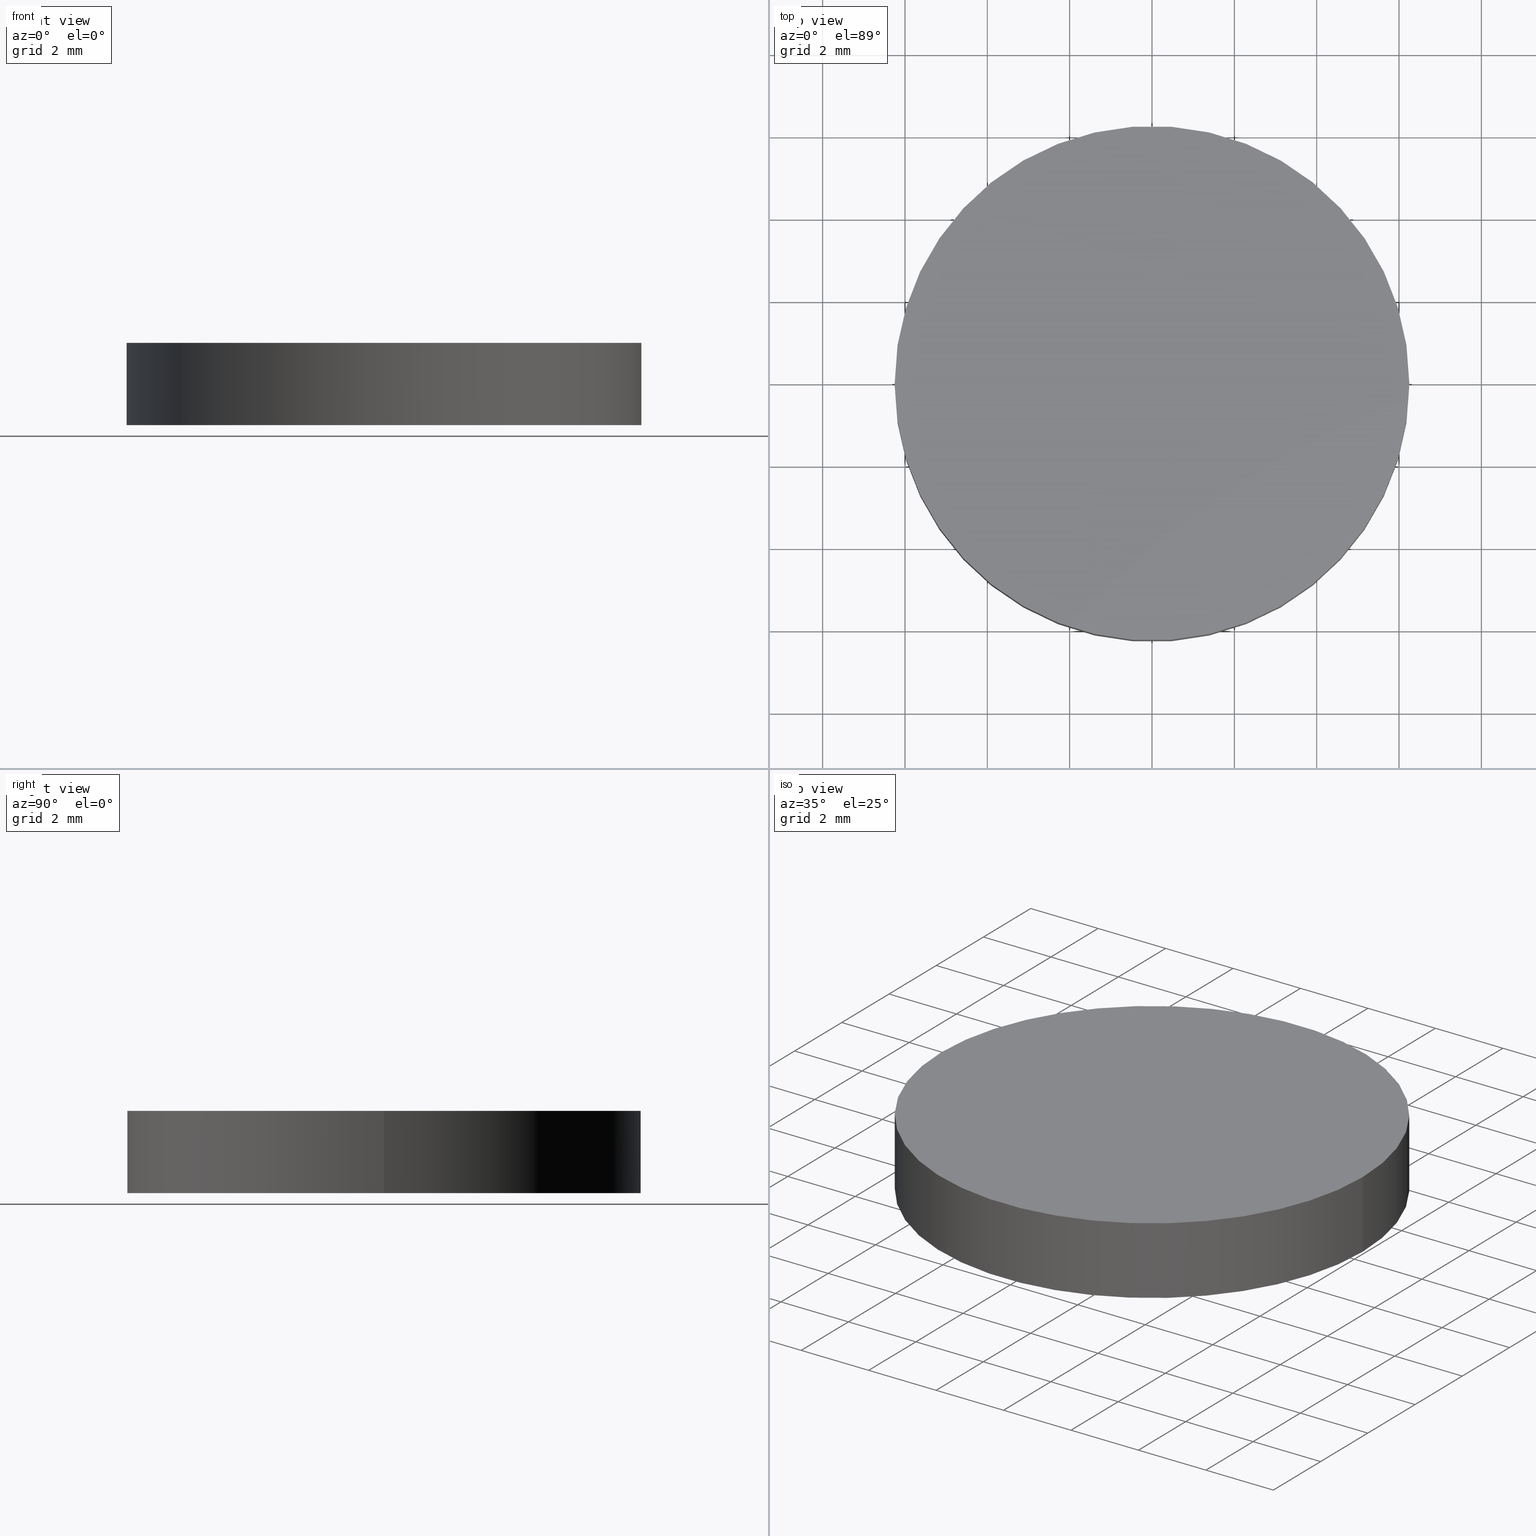
[diagram: canonical four-view strip — front | top / right | iso, engineering-drawing reading convention]
A machine part, canonical four-view strip (front | top / right | iso — engineering-drawing reading convention). The complete STEP part file that produces these views, byte-faithful:
ISO-10303-21;
HEADER;
FILE_DESCRIPTION (( 'STEP AP214' ),
    '1' );
FILE_NAME ('190138.STEP',
    '2019-07-18T02:10:59',
    ( 'user' ),
    ( '΢���й�' ),
    'SwSTEP 2.0',
    'SolidWorks 2016',
    '' );
FILE_SCHEMA (( 'AUTOMOTIVE_DESIGN' ));
ENDSEC;

DATA;
#1 =( NAMED_UNIT ( * ) PLANE_ANGLE_UNIT ( ) SI_UNIT ( $, .RADIAN. ) );
#2 = DIRECTION ( 'NONE',  ( 0.0000000000000000000, 0.0000000000000000000, 1.000000000000000000 ) ) ;
#3 = PRODUCT_DEFINITION_CONTEXT ( 'detailed design', #111, 'design' ) ;
#4 = AXIS2_PLACEMENT_3D ( 'NONE', #82, #2, #68 ) ;
#5 = CYLINDRICAL_SURFACE ( 'NONE', #43, 6.250000000000000000 ) ;
#6 = CARTESIAN_POINT ( 'NONE',  ( 0.0000000000000000000, 0.0000000000000000000, 0.0000000000000000000 ) ) ;
#7 = ORIENTED_EDGE ( 'NONE', *, *, #110, .F. ) ;
#8 = DIRECTION ( 'NONE',  ( -0.0000000000000000000, -0.0000000000000000000, -1.000000000000000000 ) ) ;
#9 = DIRECTION ( 'NONE',  ( -1.000000000000000000, 0.0000000000000000000, 0.0000000000000000000 ) ) ;
#10 = DIRECTION ( 'NONE',  ( 1.000000000000000000, 0.0000000000000000000, 0.0000000000000000000 ) ) ;
#11 = EDGE_CURVE ( 'NONE', #44, #73, #42, .T. ) ;
#12 = PRODUCT_DEFINITION ( 'δ֪', '', #91, #3 ) ;
#13 = SHAPE_DEFINITION_REPRESENTATION ( #63, #61 ) ;
#14 = UNCERTAINTY_MEASURE_WITH_UNIT (LENGTH_MEASURE( 1.000000000000000100E-005 ), #130, 'distance_accuracy_value', 'NONE');
#15 = SURFACE_STYLE_USAGE ( .BOTH. , #92 ) ;
#16 = VECTOR ( 'NONE', #86, 1000.000000000000000 ) ;
#17 =( NAMED_UNIT ( * ) SI_UNIT ( $, .STERADIAN. ) SOLID_ANGLE_UNIT ( ) );
#18 = VECTOR ( 'NONE', #8, 1000.000000000000000 ) ;
#19 = EDGE_CURVE ( 'NONE', #73, #78, #67, .T. ) ;
#20 = DIRECTION ( 'NONE',  ( 1.000000000000000000, 0.0000000000000000000, -0.0000000000000000000 ) ) ;
#21 = ORIENTED_EDGE ( 'NONE', *, *, #140, .F. ) ;
#22 = ORIENTED_EDGE ( 'NONE', *, *, #19, .F. ) ;
#23 = ADVANCED_FACE ( 'NONE', ( #127 ), #5, .T. ) ;
#24 = COLOUR_RGB ( '',1.000000000000000000, 1.000000000000000000, 1.000000000000000000 ) ;
#25 = ORIENTED_EDGE ( 'NONE', *, *, #110, .T. ) ;
#26 = AXIS2_PLACEMENT_3D ( 'NONE', #32, #116, #10 ) ;
#27 = FILL_AREA_STYLE ('',( #102 ) ) ;
#28 = CARTESIAN_POINT ( 'NONE',  ( 0.0000000000000000000, 0.0000000000000000000, 0.0000000000000000000 ) ) ;
#29 = STYLED_ITEM ( 'NONE', ( #76 ), #61 ) ;
#30 =( LENGTH_UNIT ( ) NAMED_UNIT ( * ) SI_UNIT ( .MILLI., .METRE. ) );
#31 = ORIENTED_EDGE ( 'NONE', *, *, #11, .F. ) ;
#32 = CARTESIAN_POINT ( 'NONE',  ( 0.0000000000000000000, 0.0000000000000000000, 2.000000000000000000 ) ) ;
#33 = STYLED_ITEM ( 'NONE', ( #51 ), #88 ) ;
#34 = AXIS2_PLACEMENT_3D ( 'NONE', #28, #56, #123 ) ;
#35 = AXIS2_PLACEMENT_3D ( 'NONE', #113, #37, #101 ) ;
#36 = APPLICATION_PROTOCOL_DEFINITION ( 'draft international standard', 'automotive_design', 1998, #111 ) ;
#37 = DIRECTION ( 'NONE',  ( 0.0000000000000000000, 0.0000000000000000000, 1.000000000000000000 ) ) ;
#38 = DIRECTION ( 'NONE',  ( 1.000000000000000000, 0.0000000000000000000, -0.0000000000000000000 ) ) ;
#39 = SURFACE_SIDE_STYLE ('',( #109 ) ) ;
#40 = CARTESIAN_POINT ( 'NONE',  ( 0.0000000000000000000, 0.0000000000000000000, 0.0000000000000000000 ) ) ;
#41 = ORIENTED_EDGE ( 'NONE', *, *, #11, .T. ) ;
#42 = CIRCLE ( 'NONE', #26, 6.250000000000000000 ) ;
#43 = AXIS2_PLACEMENT_3D ( 'NONE', #60, #131, #72 ) ;
#44 = VERTEX_POINT ( 'NONE', #106 ) ;
#45 = CIRCLE ( 'NONE', #4, 6.250000000000000000 ) ;
#46 = PRODUCT_CONTEXT ( 'NONE', #100, 'mechanical' ) ;
#47 = PLANE ( 'NONE',  #137 ) ;
#48 = FILL_AREA_STYLE_COLOUR ( '', #24 ) ;
#49 = EDGE_LOOP ( 'NONE', ( #74, #41 ) ) ;
#50 = DIRECTION ( 'NONE',  ( -0.0000000000000000000, -0.0000000000000000000, -1.000000000000000000 ) ) ;
#51 = PRESENTATION_STYLE_ASSIGNMENT (( #103 ) ) ;
#52 = UNCERTAINTY_MEASURE_WITH_UNIT (LENGTH_MEASURE( 1.000000000000000100E-005 ), #30, 'distance_accuracy_value', 'NONE');
#53 = CLOSED_SHELL ( 'NONE', ( #23, #75, #119, #62 ) ) ;
#54 = AXIS2_PLACEMENT_3D ( 'NONE', #40, #94, #20 ) ;
#55 = CYLINDRICAL_SURFACE ( 'NONE', #84, 6.250000000000000000 ) ;
#56 = DIRECTION ( 'NONE',  ( 0.0000000000000000000, 0.0000000000000000000, 1.000000000000000000 ) ) ;
#57 = MECHANICAL_DESIGN_GEOMETRIC_PRESENTATION_REPRESENTATION (  '', ( #29 ), #129 ) ;
#58 =( NAMED_UNIT ( * ) PLANE_ANGLE_UNIT ( ) SI_UNIT ( $, .RADIAN. ) );
#59 = DIRECTION ( 'NONE',  ( 1.000000000000000000, 0.0000000000000000000, 0.0000000000000000000 ) ) ;
#60 = CARTESIAN_POINT ( 'NONE',  ( 0.0000000000000000000, 0.0000000000000000000, 2.000000000000000000 ) ) ;
#61 = ADVANCED_BREP_SHAPE_REPRESENTATION ( '190138', ( #88, #34 ), #77 ) ;
#62 = ADVANCED_FACE ( 'NONE', ( #97 ), #126, .F. ) ;
#63 = PRODUCT_DEFINITION_SHAPE ( 'NONE', 'NONE',  #12 ) ;
#64 = ORIENTED_EDGE ( 'NONE', *, *, #140, .T. ) ;
#65 = CARTESIAN_POINT ( 'NONE',  ( -6.250000000000000000, 0.0000000000000000000, 2.000000000000000000 ) ) ;
#66 =( NAMED_UNIT ( * ) SI_UNIT ( $, .STERADIAN. ) SOLID_ANGLE_UNIT ( ) );
#67 = LINE ( 'NONE', #65, #16 ) ;
#68 = DIRECTION ( 'NONE',  ( 1.000000000000000000, 0.0000000000000000000, 0.0000000000000000000 ) ) ;
#69 = DIRECTION ( 'NONE',  ( 0.0000000000000000000, 0.0000000000000000000, 1.000000000000000000 ) ) ;
#70 = CARTESIAN_POINT ( 'NONE',  ( 6.250000000000000000, 7.654042494670957600E-016, 2.000000000000000000 ) ) ;
#71 = CARTESIAN_POINT ( 'NONE',  ( 0.0000000000000000000, 0.0000000000000000000, 2.000000000000000000 ) ) ;
#72 = DIRECTION ( 'NONE',  ( -1.000000000000000000, 0.0000000000000000000, 0.0000000000000000000 ) ) ;
#73 = VERTEX_POINT ( 'NONE', #104 ) ;
#74 = ORIENTED_EDGE ( 'NONE', *, *, #133, .T. ) ;
#75 = ADVANCED_FACE ( 'NONE', ( #85 ), #55, .T. ) ;
#76 = PRESENTATION_STYLE_ASSIGNMENT (( #15 ) ) ;
#77 =( GEOMETRIC_REPRESENTATION_CONTEXT ( 3 ) GLOBAL_UNCERTAINTY_ASSIGNED_CONTEXT ( ( #14 ) ) GLOBAL_UNIT_ASSIGNED_CONTEXT ( ( #130, #58, #124 ) ) REPRESENTATION_CONTEXT ( 'NONE', 'WORKASPACE' ) );
#78 = VERTEX_POINT ( 'NONE', #125 ) ;
#79 = CIRCLE ( 'NONE', #35, 6.250000000000000000 ) ;
#80 =( LENGTH_UNIT ( ) NAMED_UNIT ( * ) SI_UNIT ( .MILLI., .METRE. ) );
#81 = AXIS2_PLACEMENT_3D ( 'NONE', #6, #69, #59 ) ;
#82 = CARTESIAN_POINT ( 'NONE',  ( 0.0000000000000000000, 0.0000000000000000000, 0.0000000000000000000 ) ) ;
#83 = CARTESIAN_POINT ( 'NONE',  ( 6.250000000000000000, 7.654042494670957600E-016, 0.0000000000000000000 ) ) ;
#84 = AXIS2_PLACEMENT_3D ( 'NONE', #71, #50, #9 ) ;
#85 = FACE_OUTER_BOUND ( 'NONE', #96, .T. ) ;
#86 = DIRECTION ( 'NONE',  ( -0.0000000000000000000, -0.0000000000000000000, -1.000000000000000000 ) ) ;
#87 = SURFACE_STYLE_FILL_AREA ( #27 ) ;
#88 = MANIFOLD_SOLID_BREP ( '͹̨-����1', #53 ) ;
#89 = UNCERTAINTY_MEASURE_WITH_UNIT (LENGTH_MEASURE( 1.000000000000000100E-005 ), #80, 'distance_accuracy_value', 'NONE');
#90 = ORIENTED_EDGE ( 'NONE', *, *, #128, .F. ) ;
#91 = PRODUCT_DEFINITION_FORMATION_WITH_SPECIFIED_SOURCE ( '�κ�', '', #95, .NOT_KNOWN. ) ;
#92 = SURFACE_SIDE_STYLE ('',( #87 ) ) ;
#93 =( NAMED_UNIT ( * ) PLANE_ANGLE_UNIT ( ) SI_UNIT ( $, .RADIAN. ) );
#94 = DIRECTION ( 'NONE',  ( 0.0000000000000000000, 0.0000000000000000000, 1.000000000000000000 ) ) ;
#95 = PRODUCT ( '190138', '190138', '', ( #46 ) ) ;
#96 = EDGE_LOOP ( 'NONE', ( #7, #105, #135, #64 ) ) ;
#97 = FACE_OUTER_BOUND ( 'NONE', #117, .T. ) ;
#98 = LINE ( 'NONE', #70, #18 ) ;
#99 = MECHANICAL_DESIGN_GEOMETRIC_PRESENTATION_REPRESENTATION (  '', ( #33 ), #138 ) ;
#100 = APPLICATION_CONTEXT ( 'automotive_design' ) ;
#101 = DIRECTION ( 'NONE',  ( 1.000000000000000000, 0.0000000000000000000, 0.0000000000000000000 ) ) ;
#102 = FILL_AREA_STYLE_COLOUR ( '', #107 ) ;
#103 = SURFACE_STYLE_USAGE ( .BOTH. , #39 ) ;
#104 = CARTESIAN_POINT ( 'NONE',  ( -6.250000000000000000, 0.0000000000000000000, 2.000000000000000000 ) ) ;
#105 = ORIENTED_EDGE ( 'NONE', *, *, #133, .F. ) ;
#106 = CARTESIAN_POINT ( 'NONE',  ( 6.250000000000000000, 7.654042494670957600E-016, 2.000000000000000000 ) ) ;
#107 = COLOUR_RGB ( '',1.000000000000000000, 1.000000000000000000, 1.000000000000000000 ) ;
#108 = EDGE_LOOP ( 'NONE', ( #31, #25, #134, #22 ) ) ;
#109 = SURFACE_STYLE_FILL_AREA ( #115 ) ;
#110 = EDGE_CURVE ( 'NONE', #44, #139, #98, .T. ) ;
#111 = APPLICATION_CONTEXT ( 'automotive_design' ) ;
#112 = APPLICATION_PROTOCOL_DEFINITION ( 'draft international standard', 'automotive_design', 1998, #100 ) ;
#113 = CARTESIAN_POINT ( 'NONE',  ( 0.0000000000000000000, 0.0000000000000000000, 2.000000000000000000 ) ) ;
#114 = DIRECTION ( 'NONE',  ( 0.0000000000000000000, 0.0000000000000000000, 1.000000000000000000 ) ) ;
#115 = FILL_AREA_STYLE ('',( #48 ) ) ;
#116 = DIRECTION ( 'NONE',  ( 0.0000000000000000000, 0.0000000000000000000, 1.000000000000000000 ) ) ;
#117 = EDGE_LOOP ( 'NONE', ( #21, #90 ) ) ;
#118 = PRESENTATION_LAYER_ASSIGNMENT (  '', '', ( #29 ) ) ;
#119 = ADVANCED_FACE ( 'NONE', ( #120 ), #47, .T. ) ;
#120 = FACE_OUTER_BOUND ( 'NONE', #49, .T. ) ;
#121 = CIRCLE ( 'NONE', #81, 6.250000000000000000 ) ;
#122 = PRESENTATION_LAYER_ASSIGNMENT (  '', '', ( #33 ) ) ;
#123 = DIRECTION ( 'NONE',  ( 1.000000000000000000, 0.0000000000000000000, 0.0000000000000000000 ) ) ;
#124 =( NAMED_UNIT ( * ) SI_UNIT ( $, .STERADIAN. ) SOLID_ANGLE_UNIT ( ) );
#125 = CARTESIAN_POINT ( 'NONE',  ( -6.250000000000000000, 0.0000000000000000000, 0.0000000000000000000 ) ) ;
#126 = PLANE ( 'NONE',  #54 ) ;
#127 = FACE_OUTER_BOUND ( 'NONE', #108, .T. ) ;
#128 = EDGE_CURVE ( 'NONE', #139, #78, #121, .T. ) ;
#129 =( GEOMETRIC_REPRESENTATION_CONTEXT ( 3 ) GLOBAL_UNCERTAINTY_ASSIGNED_CONTEXT ( ( #89 ) ) GLOBAL_UNIT_ASSIGNED_CONTEXT ( ( #80, #1, #66 ) ) REPRESENTATION_CONTEXT ( 'NONE', 'WORKASPACE' ) );
#130 =( LENGTH_UNIT ( ) NAMED_UNIT ( * ) SI_UNIT ( .MILLI., .METRE. ) );
#131 = DIRECTION ( 'NONE',  ( -0.0000000000000000000, -0.0000000000000000000, -1.000000000000000000 ) ) ;
#132 = CARTESIAN_POINT ( 'NONE',  ( 0.0000000000000000000, 0.0000000000000000000, 2.000000000000000000 ) ) ;
#133 = EDGE_CURVE ( 'NONE', #73, #44, #79, .T. ) ;
#134 = ORIENTED_EDGE ( 'NONE', *, *, #128, .T. ) ;
#135 = ORIENTED_EDGE ( 'NONE', *, *, #19, .T. ) ;
#136 = PRODUCT_RELATED_PRODUCT_CATEGORY ( 'part', '', ( #95 ) ) ;
#137 = AXIS2_PLACEMENT_3D ( 'NONE', #132, #114, #38 ) ;
#138 =( GEOMETRIC_REPRESENTATION_CONTEXT ( 3 ) GLOBAL_UNCERTAINTY_ASSIGNED_CONTEXT ( ( #52 ) ) GLOBAL_UNIT_ASSIGNED_CONTEXT ( ( #30, #93, #17 ) ) REPRESENTATION_CONTEXT ( 'NONE', 'WORKASPACE' ) );
#139 = VERTEX_POINT ( 'NONE', #83 ) ;
#140 = EDGE_CURVE ( 'NONE', #78, #139, #45, .T. ) ;
ENDSEC;
END-ISO-10303-21;
